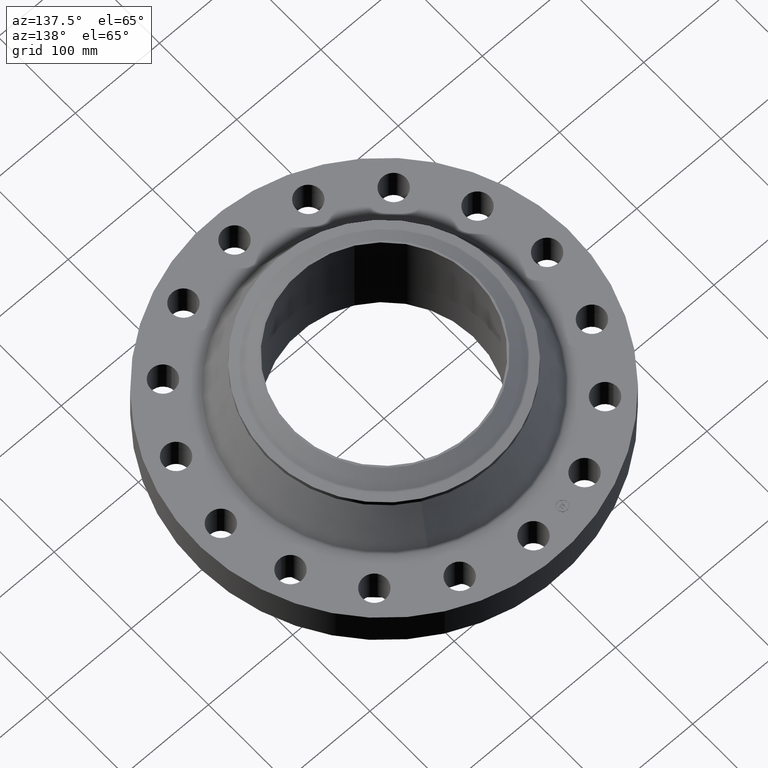
[diagram: clean part render]
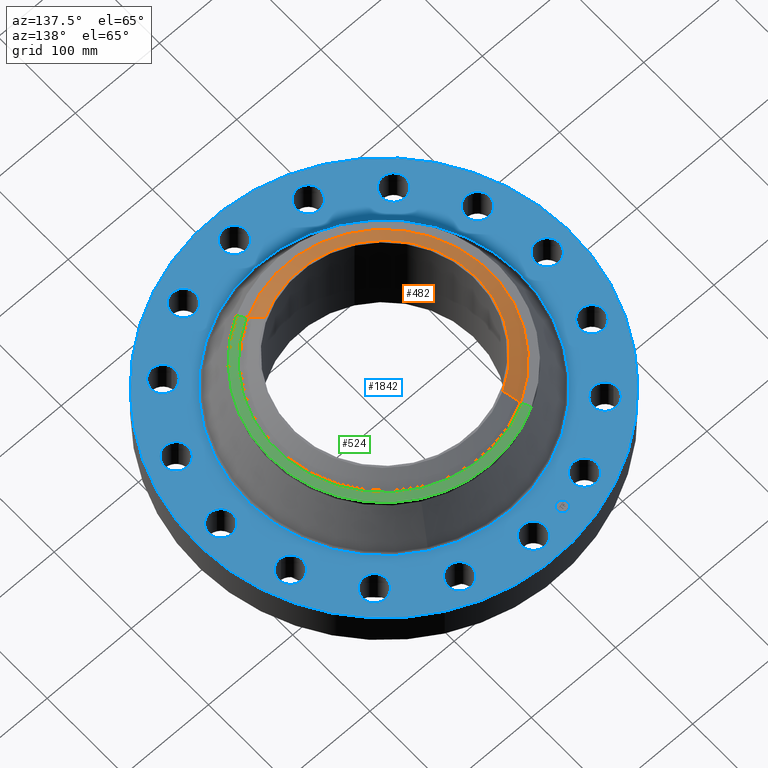
[diagram: same view with three faces highlighted in distinct colors, each labeled with its STEP entity id]
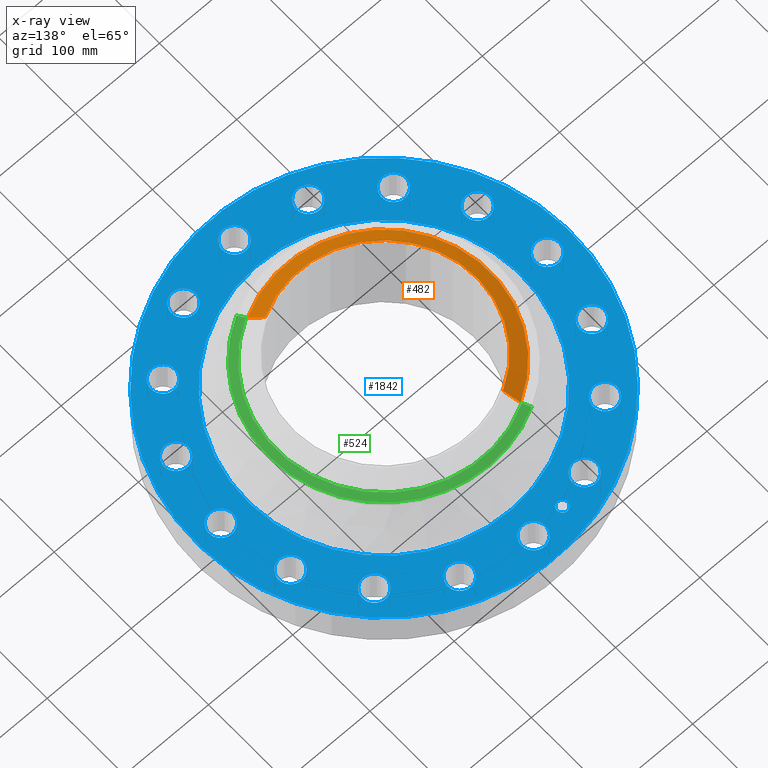
[diagram: x-ray of the same camera — body ghosted, the three highlighted faces saturated]
A machine part, auxiliary view with three faces highlighted in distinct colors.
The next image is the same camera in x-ray (body ghosted, the three faces saturated) — at least one of them is partly hidden behind the body in this view.
Their STEP definitions:

[orange] entity #482 — the highlighted conical surface has half-angle 52.5 deg.
#371=AXIS2_PLACEMENT_3D('Circle Axis2P3D',#369,#370,$) ;
#400=AXIS2_PLACEMENT_3D('Cone Axis2P3D',#397,#398,#399) ;
#473=AXIS2_PLACEMENT_3D('Circle Axis2P3D',#471,#472,$) ;
#364=CARTESIAN_POINT('Vertex',(2.07530858149,-3.79882687717,4.56000000002)) ;
#366=CARTESIAN_POINT('Vertex',(-2.07530858149,3.79882687717,4.56000000002)) ;
#369=CARTESIAN_POINT('Axis2P3D Location',(0.,0.,4.56000000002)) ;
#397=CARTESIAN_POINT('Axis2P3D Location',(0.,0.,4.56000000002)) ;
#402=CARTESIAN_POINT('Line Origine',(2.23024988404,-4.08244502908,4.31201437258)) ;
#406=CARTESIAN_POINT('Vertex',(2.38519118659,-4.36606318098,4.06402874515)) ;
#413=CARTESIAN_POINT('Vertex',(-2.38519118659,4.36606318098,4.06402874515)) ;
#416=CARTESIAN_POINT('Line Origine',(-2.23024988404,4.08244502908,4.31201437258)) ;
#471=CARTESIAN_POINT('Axis2P3D Location',(0.,0.,4.06402874515)) ;
#370=DIRECTION('Axis2P3D Direction',(0.,0.,-0.0393700787402)) ;
#398=DIRECTION('Axis2P3D Direction',(-0.,-0.,-0.0393700787402)) ;
#399=DIRECTION('Axis2P3D XDirection',(0.0188750212049,-0.0345504945626,0.)) ;
#403=DIRECTION('Vector Direction',(0.014974561121,-0.02741075027,-0.023966985394)) ;
#417=DIRECTION('Vector Direction',(-0.014974561121,0.02741075027,-0.023966985394)) ;
#472=DIRECTION('Axis2P3D Direction',(0.,0.,-0.0393700787402)) ;
#404=VECTOR('Line Direction',#403,0.0393700787402) ;
#418=VECTOR('Line Direction',#417,0.0393700787402) ;
#477=ORIENTED_EDGE('',*,*,#373,.F.) ;
#478=ORIENTED_EDGE('',*,*,#420,.T.) ;
#479=ORIENTED_EDGE('',*,*,#475,.T.) ;
#480=ORIENTED_EDGE('',*,*,#408,.F.) ;
#482=ADVANCED_FACE('PartBody',(#481),#401,.T.) ;
#372=CIRCLE('generated circle',#371,4.3287401575) ;
#474=CIRCLE('generated circle',#473,4.97510248104) ;
#401=CONICAL_SURFACE('Cone',#400,4.3287401575,0.916297857297) ;
#373=EDGE_CURVE('',#367,#365,#372,.F.) ;
#408=EDGE_CURVE('',#365,#407,#405,.T.) ;
#420=EDGE_CURVE('',#367,#414,#419,.T.) ;
#475=EDGE_CURVE('',#414,#407,#474,.F.) ;
#476=EDGE_LOOP('',(#477,#478,#479,#480)) ;
#481=FACE_OUTER_BOUND('',#476,.T.) ;
#405=LINE('Line',#402,#404) ;
#419=LINE('Line',#416,#418) ;
#365=VERTEX_POINT('',#364) ;
#367=VERTEX_POINT('',#366) ;
#407=VERTEX_POINT('',#406) ;
#414=VERTEX_POINT('',#413) ;

[blue] entity #1842 — the highlighted planar face has unit normal (0, 0, -1).
#65=AXIS2_PLACEMENT_3D('Circle Axis2P3D',#63,#64,$) ;
#90=AXIS2_PLACEMENT_3D('Circle Axis2P3D',#88,#89,$) ;
#130=AXIS2_PLACEMENT_3D('Circle Axis2P3D',#128,#129,$) ;
#154=AXIS2_PLACEMENT_3D('Circle Axis2P3D',#152,#153,$) ;
#171=AXIS2_PLACEMENT_3D('Circle Axis2P3D',#169,#170,$) ;
#206=AXIS2_PLACEMENT_3D('Circle Axis2P3D',#204,#205,$) ;
#891=AXIS2_PLACEMENT_3D('Circle Axis2P3D',#889,#890,$) ;
#903=AXIS2_PLACEMENT_3D('Circle Axis2P3D',#901,#902,$) ;
#934=AXIS2_PLACEMENT_3D('Circle Axis2P3D',#932,#933,$) ;
#946=AXIS2_PLACEMENT_3D('Circle Axis2P3D',#944,#945,$) ;
#977=AXIS2_PLACEMENT_3D('Circle Axis2P3D',#975,#976,$) ;
#989=AXIS2_PLACEMENT_3D('Circle Axis2P3D',#987,#988,$) ;
#1020=AXIS2_PLACEMENT_3D('Circle Axis2P3D',#1018,#1019,$) ;
#1032=AXIS2_PLACEMENT_3D('Circle Axis2P3D',#1030,#1031,$) ;
#1063=AXIS2_PLACEMENT_3D('Circle Axis2P3D',#1061,#1062,$) ;
#1075=AXIS2_PLACEMENT_3D('Circle Axis2P3D',#1073,#1074,$) ;
#1106=AXIS2_PLACEMENT_3D('Circle Axis2P3D',#1104,#1105,$) ;
#1118=AXIS2_PLACEMENT_3D('Circle Axis2P3D',#1116,#1117,$) ;
#1149=AXIS2_PLACEMENT_3D('Circle Axis2P3D',#1147,#1148,$) ;
#1161=AXIS2_PLACEMENT_3D('Circle Axis2P3D',#1159,#1160,$) ;
#1192=AXIS2_PLACEMENT_3D('Circle Axis2P3D',#1190,#1191,$) ;
#1204=AXIS2_PLACEMENT_3D('Circle Axis2P3D',#1202,#1203,$) ;
#1235=AXIS2_PLACEMENT_3D('Circle Axis2P3D',#1233,#1234,$) ;
#1247=AXIS2_PLACEMENT_3D('Circle Axis2P3D',#1245,#1246,$) ;
#1278=AXIS2_PLACEMENT_3D('Circle Axis2P3D',#1276,#1277,$) ;
#1290=AXIS2_PLACEMENT_3D('Circle Axis2P3D',#1288,#1289,$) ;
#1321=AXIS2_PLACEMENT_3D('Circle Axis2P3D',#1319,#1320,$) ;
#1333=AXIS2_PLACEMENT_3D('Circle Axis2P3D',#1331,#1332,$) ;
#1364=AXIS2_PLACEMENT_3D('Circle Axis2P3D',#1362,#1363,$) ;
#1376=AXIS2_PLACEMENT_3D('Circle Axis2P3D',#1374,#1375,$) ;
#1407=AXIS2_PLACEMENT_3D('Circle Axis2P3D',#1405,#1406,$) ;
#1419=AXIS2_PLACEMENT_3D('Circle Axis2P3D',#1417,#1418,$) ;
#1450=AXIS2_PLACEMENT_3D('Circle Axis2P3D',#1448,#1449,$) ;
#1462=AXIS2_PLACEMENT_3D('Circle Axis2P3D',#1460,#1461,$) ;
#1493=AXIS2_PLACEMENT_3D('Circle Axis2P3D',#1491,#1492,$) ;
#1505=AXIS2_PLACEMENT_3D('Circle Axis2P3D',#1503,#1504,$) ;
#1750=AXIS2_PLACEMENT_3D('Plane Axis2P3D',#1747,#1748,#1749) ;
#1826=AXIS2_PLACEMENT_3D('Circle Axis2P3D',#1824,#1825,$) ;
#1835=AXIS2_PLACEMENT_3D('Circle Axis2P3D',#1833,#1834,$) ;
#46=CARTESIAN_POINT('Vertex',(-0.491446234661,7.89347830165,1.81000000001)) ;
#60=CARTESIAN_POINT('Vertex',(0.491446234661,7.35652169841,1.81000000001)) ;
#63=CARTESIAN_POINT('Axis2P3D Location',(0.,7.62500000003,1.81000000001)) ;
#88=CARTESIAN_POINT('Axis2P3D Location',(0.,7.62500000003,1.81000000001)) ;
#125=CARTESIAN_POINT('Vertex',(-4.1949734628,-7.67884741657,1.81000000001)) ;
#128=CARTESIAN_POINT('Axis2P3D Location',(0.,0.,1.81000000001)) ;
#132=CARTESIAN_POINT('Vertex',(4.1949734628,7.67884741657,1.81000000001)) ;
#152=CARTESIAN_POINT('Axis2P3D Location',(0.,0.,1.81000000001)) ;
#169=CARTESIAN_POINT('Axis2P3D Location',(0.,0.,1.81000000001)) ;
#173=CARTESIAN_POINT('Vertex',(3.06126110191,5.60360086,1.81000000001)) ;
#175=CARTESIAN_POINT('Vertex',(-3.06126110191,-5.60360086,1.81000000001)) ;
#204=CARTESIAN_POINT('Axis2P3D Location',(0.,0.,1.81000000001)) ;
#879=CARTESIAN_POINT('Vertex',(-2.56666625224,-7.48069137512,1.81000000001)) ;
#886=CARTESIAN_POINT('Vertex',(-3.26925609135,-6.60847149573,1.81000000001)) ;
#889=CARTESIAN_POINT('Axis2P3D Location',(-2.9179611718,-7.04458143543,1.81000000001)) ;
#901=CARTESIAN_POINT('Axis2P3D Location',(-2.9179611718,-7.04458143543,1.81000000001)) ;
#922=CARTESIAN_POINT('Vertex',(5.23402706913,5.92903699936,1.81000000001)) ;
#929=CARTESIAN_POINT('Vertex',(5.54935134401,4.85434141378,1.81000000001)) ;
#932=CARTESIAN_POINT('Axis2P3D Location',(5.39168920657,5.39168920657,1.81000000001)) ;
#944=CARTESIAN_POINT('Axis2P3D Location',(5.39168920657,5.39168920657,1.81000000001)) ;
#965=CARTESIAN_POINT('Vertex',(-5.23402706913,-5.92903699936,1.81000000001)) ;
#972=CARTESIAN_POINT('Vertex',(-5.54935134401,-4.85434141378,1.81000000001)) ;
#975=CARTESIAN_POINT('Axis2P3D Location',(-5.39168920657,-5.39168920657,1.81000000001)) ;
#987=CARTESIAN_POINT('Axis2P3D Location',(-5.39168920657,-5.39168920657,1.81000000001)) ;
#1008=CARTESIAN_POINT('Vertex',(7.10455471131,3.47474048731,1.81000000001)) ;
#1015=CARTESIAN_POINT('Vertex',(6.98460815954,2.36118185628,1.81000000001)) ;
#1018=CARTESIAN_POINT('Axis2P3D Location',(7.04458143543,2.9179611718,1.81000000001)) ;
#1030=CARTESIAN_POINT('Axis2P3D Location',(7.04458143543,2.9179611718,1.81000000001)) ;
#1051=CARTESIAN_POINT('Vertex',(-7.10455471131,-3.47474048731,1.81000000001)) ;
#1058=CARTESIAN_POINT('Vertex',(-6.98460815954,-2.36118185628,1.81000000001)) ;
#1061=CARTESIAN_POINT('Axis2P3D Location',(-7.04458143543,-2.9179611718,1.81000000001)) ;
#1073=CARTESIAN_POINT('Axis2P3D Location',(-7.04458143543,-2.9179611718,1.81000000001)) ;
#1094=CARTESIAN_POINT('Vertex',(7.89347830165,0.491446234661,1.81000000001)) ;
#1101=CARTESIAN_POINT('Vertex',(7.35652169841,-0.491446234661,1.81000000001)) ;
#1104=CARTESIAN_POINT('Axis2P3D Location',(7.62500000003,-6.52068346028E-016,1.81000000001)) ;
#1116=CARTESIAN_POINT('Axis2P3D Location',(7.62500000003,-6.52068346028E-016,1.81000000001)) ;
#1137=CARTESIAN_POINT('Vertex',(-7.89347830165,-0.491446234661,1.81000000001)) ;
#1144=CARTESIAN_POINT('Vertex',(-7.35652169841,0.491446234661,1.81000000001)) ;
#1147=CARTESIAN_POINT('Axis2P3D Location',(-7.62500000003,-2.81724838326E-016,1.81000000001)) ;
#1159=CARTESIAN_POINT('Axis2P3D Location',(-7.62500000003,-2.81724838326E-016,1.81000000001)) ;
#1180=CARTESIAN_POINT('Vertex',(7.48069137512,-2.56666625224,1.81000000001)) ;
#1187=CARTESIAN_POINT('Vertex',(6.60847149573,-3.26925609135,1.81000000001)) ;
#1190=CARTESIAN_POINT('Axis2P3D Location',(7.04458143543,-2.9179611718,1.81000000001)) ;
#1202=CARTESIAN_POINT('Axis2P3D Location',(7.04458143543,-2.9179611718,1.81000000001)) ;
#1223=CARTESIAN_POINT('Vertex',(-7.48069137512,2.56666625224,1.81000000001)) ;
#1230=CARTESIAN_POINT('Vertex',(-6.60847149573,3.26925609135,1.81000000001)) ;
#1233=CARTESIAN_POINT('Axis2P3D Location',(-7.04458143543,2.9179611718,1.81000000001)) ;
#1245=CARTESIAN_POINT('Axis2P3D Location',(-7.04458143543,2.9179611718,1.81000000001)) ;
#1266=CARTESIAN_POINT('Vertex',(5.92903699936,-5.23402706913,1.81000000001)) ;
#1273=CARTESIAN_POINT('Vertex',(4.85434141378,-5.54935134401,1.81000000001)) ;
#1276=CARTESIAN_POINT('Axis2P3D Location',(5.39168920657,-5.39168920657,1.81000000001)) ;
#1288=CARTESIAN_POINT('Axis2P3D Location',(5.39168920657,-5.39168920657,1.81000000001)) ;
#1309=CARTESIAN_POINT('Vertex',(-5.92903699936,5.23402706913,1.81000000001)) ;
#1316=CARTESIAN_POINT('Vertex',(-4.85434141378,5.54935134401,1.81000000001)) ;
#1319=CARTESIAN_POINT('Axis2P3D Location',(-5.39168920657,5.39168920657,1.81000000001)) ;
#1331=CARTESIAN_POINT('Axis2P3D Location',(-5.39168920657,5.39168920657,1.81000000001)) ;
#1352=CARTESIAN_POINT('Vertex',(3.47474048731,-7.10455471131,1.81000000001)) ;
#1359=CARTESIAN_POINT('Vertex',(2.36118185628,-6.98460815954,1.81000000001)) ;
#1362=CARTESIAN_POINT('Axis2P3D Location',(2.9179611718,-7.04458143543,1.81000000001)) ;
#1374=CARTESIAN_POINT('Axis2P3D Location',(2.9179611718,-7.04458143543,1.81000000001)) ;
#1395=CARTESIAN_POINT('Vertex',(-3.47474048731,7.10455471131,1.81000000001)) ;
#1402=CARTESIAN_POINT('Vertex',(-2.36118185628,6.98460815954,1.81000000001)) ;
#1405=CARTESIAN_POINT('Axis2P3D Location',(-2.9179611718,7.04458143543,1.81000000001)) ;
#1417=CARTESIAN_POINT('Axis2P3D Location',(-2.9179611718,7.04458143543,1.81000000001)) ;
#1438=CARTESIAN_POINT('Vertex',(0.491446234661,-7.89347830165,1.81000000001)) ;
#1445=CARTESIAN_POINT('Vertex',(-0.491446234661,-7.35652169841,1.81000000001)) ;
#1448=CARTESIAN_POINT('Axis2P3D Location',(9.33793184354E-016,-7.62500000003,1.81000000001)) ;
#1460=CARTESIAN_POINT('Axis2P3D Location',(9.33793184354E-016,-7.62500000003,1.81000000001)) ;
#1481=CARTESIAN_POINT('Vertex',(2.56666625224,7.48069137512,1.81000000001)) ;
#1488=CARTESIAN_POINT('Vertex',(3.26925609135,6.60847149573,1.81000000001)) ;
#1491=CARTESIAN_POINT('Axis2P3D Location',(2.9179611718,7.04458143543,1.81000000001)) ;
#1503=CARTESIAN_POINT('Axis2P3D Location',(2.9179611718,7.04458143543,1.81000000001)) ;
#1747=CARTESIAN_POINT('Axis2P3D Location',(0.,8.75000000003,1.81000000001)) ;
#1824=CARTESIAN_POINT('Axis2P3D Location',(-1.48756370538,7.4784877631,1.81000000001)) ;
#1828=CARTESIAN_POINT('Vertex',(-1.73030806228,7.43020290841,1.81000000001)) ;
#1830=CARTESIAN_POINT('Vertex',(-1.24481934848,7.5267726178,1.81000000001)) ;
#1833=CARTESIAN_POINT('Axis2P3D Location',(-1.48756370538,7.4784877631,1.81000000001)) ;
#64=DIRECTION('Axis2P3D Direction',(0.,-0.,-0.0393700787402)) ;
#89=DIRECTION('Axis2P3D Direction',(0.,-0.,-0.0393700787402)) ;
#129=DIRECTION('Axis2P3D Direction',(0.,0.,-0.0393700787402)) ;
#153=DIRECTION('Axis2P3D Direction',(0.,0.,-0.0393700787402)) ;
#170=DIRECTION('Axis2P3D Direction',(0.,0.,-0.0393700787402)) ;
#205=DIRECTION('Axis2P3D Direction',(0.,0.,-0.0393700787402)) ;
#890=DIRECTION('Axis2P3D Direction',(0.,0.,-0.0393700787402)) ;
#902=DIRECTION('Axis2P3D Direction',(0.,0.,-0.0393700787402)) ;
#933=DIRECTION('Axis2P3D Direction',(0.,-0.,-0.0393700787402)) ;
#945=DIRECTION('Axis2P3D Direction',(0.,-0.,-0.0393700787402)) ;
#976=DIRECTION('Axis2P3D Direction',(0.,0.,-0.0393700787402)) ;
#988=DIRECTION('Axis2P3D Direction',(0.,0.,-0.0393700787402)) ;
#1019=DIRECTION('Axis2P3D Direction',(0.,-0.,-0.0393700787402)) ;
#1031=DIRECTION('Axis2P3D Direction',(0.,-0.,-0.0393700787402)) ;
#1062=DIRECTION('Axis2P3D Direction',(0.,0.,-0.0393700787402)) ;
#1074=DIRECTION('Axis2P3D Direction',(0.,0.,-0.0393700787402)) ;
#1105=DIRECTION('Axis2P3D Direction',(0.,-0.,-0.0393700787402)) ;
#1117=DIRECTION('Axis2P3D Direction',(0.,-0.,-0.0393700787402)) ;
#1148=DIRECTION('Axis2P3D Direction',(0.,0.,-0.0393700787402)) ;
#1160=DIRECTION('Axis2P3D Direction',(0.,0.,-0.0393700787402)) ;
#1191=DIRECTION('Axis2P3D Direction',(-0.,0.,-0.0393700787402)) ;
#1203=DIRECTION('Axis2P3D Direction',(-0.,0.,-0.0393700787402)) ;
#1234=DIRECTION('Axis2P3D Direction',(0.,0.,-0.0393700787402)) ;
#1246=DIRECTION('Axis2P3D Direction',(0.,0.,-0.0393700787402)) ;
#1277=DIRECTION('Axis2P3D Direction',(-0.,0.,-0.0393700787402)) ;
#1289=DIRECTION('Axis2P3D Direction',(-0.,0.,-0.0393700787402)) ;
#1320=DIRECTION('Axis2P3D Direction',(0.,0.,-0.0393700787402)) ;
#1332=DIRECTION('Axis2P3D Direction',(0.,0.,-0.0393700787402)) ;
#1363=DIRECTION('Axis2P3D Direction',(-0.,0.,-0.0393700787402)) ;
#1375=DIRECTION('Axis2P3D Direction',(-0.,0.,-0.0393700787402)) ;
#1406=DIRECTION('Axis2P3D Direction',(0.,0.,-0.0393700787402)) ;
#1418=DIRECTION('Axis2P3D Direction',(0.,0.,-0.0393700787402)) ;
#1449=DIRECTION('Axis2P3D Direction',(-0.,0.,-0.0393700787402)) ;
#1461=DIRECTION('Axis2P3D Direction',(-0.,0.,-0.0393700787402)) ;
#1492=DIRECTION('Axis2P3D Direction',(0.,-0.,-0.0393700787402)) ;
#1504=DIRECTION('Axis2P3D Direction',(0.,-0.,-0.0393700787402)) ;
#1748=DIRECTION('Axis2P3D Direction',(0.,0.,-0.0393700787402)) ;
#1749=DIRECTION('Axis2P3D XDirection',(0.0393700787402,0.,0.)) ;
#1825=DIRECTION('Axis2P3D Direction',(0.,0.,-0.0393700787402)) ;
#1834=DIRECTION('Axis2P3D Direction',(0.,0.,-0.0393700787402)) ;
#1753=ORIENTED_EDGE('',*,*,#156,.F.) ;
#1754=ORIENTED_EDGE('',*,*,#134,.F.) ;
#1757=ORIENTED_EDGE('',*,*,#67,.T.) ;
#1758=ORIENTED_EDGE('',*,*,#92,.T.) ;
#1761=ORIENTED_EDGE('',*,*,#208,.T.) ;
#1762=ORIENTED_EDGE('',*,*,#177,.T.) ;
#1765=ORIENTED_EDGE('',*,*,#1507,.T.) ;
#1766=ORIENTED_EDGE('',*,*,#1495,.T.) ;
#1769=ORIENTED_EDGE('',*,*,#948,.T.) ;
#1770=ORIENTED_EDGE('',*,*,#936,.T.) ;
#1773=ORIENTED_EDGE('',*,*,#1034,.T.) ;
#1774=ORIENTED_EDGE('',*,*,#1022,.T.) ;
#1777=ORIENTED_EDGE('',*,*,#1120,.T.) ;
#1778=ORIENTED_EDGE('',*,*,#1108,.T.) ;
#1781=ORIENTED_EDGE('',*,*,#1206,.T.) ;
#1782=ORIENTED_EDGE('',*,*,#1194,.T.) ;
#1785=ORIENTED_EDGE('',*,*,#1292,.T.) ;
#1786=ORIENTED_EDGE('',*,*,#1280,.T.) ;
#1789=ORIENTED_EDGE('',*,*,#1378,.T.) ;
#1790=ORIENTED_EDGE('',*,*,#1366,.T.) ;
#1793=ORIENTED_EDGE('',*,*,#1464,.T.) ;
#1794=ORIENTED_EDGE('',*,*,#1452,.T.) ;
#1797=ORIENTED_EDGE('',*,*,#905,.T.) ;
#1798=ORIENTED_EDGE('',*,*,#893,.T.) ;
#1801=ORIENTED_EDGE('',*,*,#991,.T.) ;
#1802=ORIENTED_EDGE('',*,*,#979,.T.) ;
#1805=ORIENTED_EDGE('',*,*,#1077,.T.) ;
#1806=ORIENTED_EDGE('',*,*,#1065,.T.) ;
#1809=ORIENTED_EDGE('',*,*,#1163,.T.) ;
#1810=ORIENTED_EDGE('',*,*,#1151,.T.) ;
#1813=ORIENTED_EDGE('',*,*,#1249,.T.) ;
#1814=ORIENTED_EDGE('',*,*,#1237,.T.) ;
#1817=ORIENTED_EDGE('',*,*,#1335,.T.) ;
#1818=ORIENTED_EDGE('',*,*,#1323,.T.) ;
#1821=ORIENTED_EDGE('',*,*,#1421,.T.) ;
#1822=ORIENTED_EDGE('',*,*,#1409,.T.) ;
#1839=ORIENTED_EDGE('',*,*,#1832,.T.) ;
#1840=ORIENTED_EDGE('',*,*,#1837,.T.) ;
#1759=FACE_BOUND('',#1756,.T.) ;
#1763=FACE_BOUND('',#1760,.T.) ;
#1767=FACE_BOUND('',#1764,.T.) ;
#1771=FACE_BOUND('',#1768,.T.) ;
#1775=FACE_BOUND('',#1772,.T.) ;
#1779=FACE_BOUND('',#1776,.T.) ;
#1783=FACE_BOUND('',#1780,.T.) ;
#1787=FACE_BOUND('',#1784,.T.) ;
#1791=FACE_BOUND('',#1788,.T.) ;
#1795=FACE_BOUND('',#1792,.T.) ;
#1799=FACE_BOUND('',#1796,.T.) ;
#1803=FACE_BOUND('',#1800,.T.) ;
#1807=FACE_BOUND('',#1804,.T.) ;
#1811=FACE_BOUND('',#1808,.T.) ;
#1815=FACE_BOUND('',#1812,.T.) ;
#1819=FACE_BOUND('',#1816,.T.) ;
#1823=FACE_BOUND('',#1820,.T.) ;
#1841=FACE_BOUND('',#1838,.T.) ;
#1842=ADVANCED_FACE('PartBody',(#1755,#1759,#1763,#1767,#1771,#1775,#1779,#1783,#1787,#1791,#1795,#1799,#1803,#1807,#1811,#1815,#1819,#1823,#1841),#1751,.F.) ;
#66=CIRCLE('generated circle',#65,0.560000000002) ;
#91=CIRCLE('generated circle',#90,0.560000000002) ;
#131=CIRCLE('generated circle',#130,8.75000000003) ;
#155=CIRCLE('generated circle',#154,8.75000000003) ;
#172=CIRCLE('generated circle',#171,6.38526915112) ;
#207=CIRCLE('generated circle',#206,6.38526915112) ;
#892=CIRCLE('generated circle',#891,0.560000000002) ;
#904=CIRCLE('generated circle',#903,0.560000000002) ;
#935=CIRCLE('generated circle',#934,0.560000000002) ;
#947=CIRCLE('generated circle',#946,0.560000000002) ;
#978=CIRCLE('generated circle',#977,0.560000000002) ;
#990=CIRCLE('generated circle',#989,0.560000000002) ;
#1021=CIRCLE('generated circle',#1020,0.560000000002) ;
#1033=CIRCLE('generated circle',#1032,0.560000000002) ;
#1064=CIRCLE('generated circle',#1063,0.560000000002) ;
#1076=CIRCLE('generated circle',#1075,0.560000000002) ;
#1107=CIRCLE('generated circle',#1106,0.560000000002) ;
#1119=CIRCLE('generated circle',#1118,0.560000000002) ;
#1150=CIRCLE('generated circle',#1149,0.560000000002) ;
#1162=CIRCLE('generated circle',#1161,0.560000000002) ;
#1193=CIRCLE('generated circle',#1192,0.560000000002) ;
#1205=CIRCLE('generated circle',#1204,0.560000000002) ;
#1236=CIRCLE('generated circle',#1235,0.560000000002) ;
#1248=CIRCLE('generated circle',#1247,0.560000000002) ;
#1279=CIRCLE('generated circle',#1278,0.560000000002) ;
#1291=CIRCLE('generated circle',#1290,0.560000000002) ;
#1322=CIRCLE('generated circle',#1321,0.560000000002) ;
#1334=CIRCLE('generated circle',#1333,0.560000000002) ;
#1365=CIRCLE('generated circle',#1364,0.560000000002) ;
#1377=CIRCLE('generated circle',#1376,0.560000000002) ;
#1408=CIRCLE('generated circle',#1407,0.560000000002) ;
#1420=CIRCLE('generated circle',#1419,0.560000000002) ;
#1451=CIRCLE('generated circle',#1450,0.560000000002) ;
#1463=CIRCLE('generated circle',#1462,0.560000000002) ;
#1494=CIRCLE('generated circle',#1493,0.560000000002) ;
#1506=CIRCLE('generated circle',#1505,0.560000000002) ;
#1827=CIRCLE('generated circle',#1826,0.247500000001) ;
#1836=CIRCLE('generated circle',#1835,0.247500000001) ;
#67=EDGE_CURVE('',#47,#61,#66,.T.) ;
#92=EDGE_CURVE('',#61,#47,#91,.T.) ;
#134=EDGE_CURVE('',#126,#133,#131,.T.) ;
#156=EDGE_CURVE('',#133,#126,#155,.T.) ;
#177=EDGE_CURVE('',#174,#176,#172,.T.) ;
#208=EDGE_CURVE('',#176,#174,#207,.T.) ;
#893=EDGE_CURVE('',#880,#887,#892,.T.) ;
#905=EDGE_CURVE('',#887,#880,#904,.T.) ;
#936=EDGE_CURVE('',#923,#930,#935,.T.) ;
#948=EDGE_CURVE('',#930,#923,#947,.T.) ;
#979=EDGE_CURVE('',#966,#973,#978,.T.) ;
#991=EDGE_CURVE('',#973,#966,#990,.T.) ;
#1022=EDGE_CURVE('',#1009,#1016,#1021,.T.) ;
#1034=EDGE_CURVE('',#1016,#1009,#1033,.T.) ;
#1065=EDGE_CURVE('',#1052,#1059,#1064,.T.) ;
#1077=EDGE_CURVE('',#1059,#1052,#1076,.T.) ;
#1108=EDGE_CURVE('',#1095,#1102,#1107,.T.) ;
#1120=EDGE_CURVE('',#1102,#1095,#1119,.T.) ;
#1151=EDGE_CURVE('',#1138,#1145,#1150,.T.) ;
#1163=EDGE_CURVE('',#1145,#1138,#1162,.T.) ;
#1194=EDGE_CURVE('',#1181,#1188,#1193,.T.) ;
#1206=EDGE_CURVE('',#1188,#1181,#1205,.T.) ;
#1237=EDGE_CURVE('',#1224,#1231,#1236,.T.) ;
#1249=EDGE_CURVE('',#1231,#1224,#1248,.T.) ;
#1280=EDGE_CURVE('',#1267,#1274,#1279,.T.) ;
#1292=EDGE_CURVE('',#1274,#1267,#1291,.T.) ;
#1323=EDGE_CURVE('',#1310,#1317,#1322,.T.) ;
#1335=EDGE_CURVE('',#1317,#1310,#1334,.T.) ;
#1366=EDGE_CURVE('',#1353,#1360,#1365,.T.) ;
#1378=EDGE_CURVE('',#1360,#1353,#1377,.T.) ;
#1409=EDGE_CURVE('',#1396,#1403,#1408,.T.) ;
#1421=EDGE_CURVE('',#1403,#1396,#1420,.T.) ;
#1452=EDGE_CURVE('',#1439,#1446,#1451,.T.) ;
#1464=EDGE_CURVE('',#1446,#1439,#1463,.T.) ;
#1495=EDGE_CURVE('',#1482,#1489,#1494,.T.) ;
#1507=EDGE_CURVE('',#1489,#1482,#1506,.T.) ;
#1832=EDGE_CURVE('',#1829,#1831,#1827,.T.) ;
#1837=EDGE_CURVE('',#1831,#1829,#1836,.T.) ;
#1752=EDGE_LOOP('',(#1753,#1754)) ;
#1756=EDGE_LOOP('',(#1757,#1758)) ;
#1760=EDGE_LOOP('',(#1761,#1762)) ;
#1764=EDGE_LOOP('',(#1765,#1766)) ;
#1768=EDGE_LOOP('',(#1769,#1770)) ;
#1772=EDGE_LOOP('',(#1773,#1774)) ;
#1776=EDGE_LOOP('',(#1777,#1778)) ;
#1780=EDGE_LOOP('',(#1781,#1782)) ;
#1784=EDGE_LOOP('',(#1785,#1786)) ;
#1788=EDGE_LOOP('',(#1789,#1790)) ;
#1792=EDGE_LOOP('',(#1793,#1794)) ;
#1796=EDGE_LOOP('',(#1797,#1798)) ;
#1800=EDGE_LOOP('',(#1801,#1802)) ;
#1804=EDGE_LOOP('',(#1805,#1806)) ;
#1808=EDGE_LOOP('',(#1809,#1810)) ;
#1812=EDGE_LOOP('',(#1813,#1814)) ;
#1816=EDGE_LOOP('',(#1817,#1818)) ;
#1820=EDGE_LOOP('',(#1821,#1822)) ;
#1838=EDGE_LOOP('',(#1839,#1840)) ;
#1755=FACE_OUTER_BOUND('',#1752,.T.) ;
#1751=PLANE('',#1750) ;
#47=VERTEX_POINT('',#46) ;
#61=VERTEX_POINT('',#60) ;
#126=VERTEX_POINT('',#125) ;
#133=VERTEX_POINT('',#132) ;
#174=VERTEX_POINT('',#173) ;
#176=VERTEX_POINT('',#175) ;
#880=VERTEX_POINT('',#879) ;
#887=VERTEX_POINT('',#886) ;
#923=VERTEX_POINT('',#922) ;
#930=VERTEX_POINT('',#929) ;
#966=VERTEX_POINT('',#965) ;
#973=VERTEX_POINT('',#972) ;
#1009=VERTEX_POINT('',#1008) ;
#1016=VERTEX_POINT('',#1015) ;
#1052=VERTEX_POINT('',#1051) ;
#1059=VERTEX_POINT('',#1058) ;
#1095=VERTEX_POINT('',#1094) ;
#1102=VERTEX_POINT('',#1101) ;
#1138=VERTEX_POINT('',#1137) ;
#1145=VERTEX_POINT('',#1144) ;
#1181=VERTEX_POINT('',#1180) ;
#1188=VERTEX_POINT('',#1187) ;
#1224=VERTEX_POINT('',#1223) ;
#1231=VERTEX_POINT('',#1230) ;
#1267=VERTEX_POINT('',#1266) ;
#1274=VERTEX_POINT('',#1273) ;
#1310=VERTEX_POINT('',#1309) ;
#1317=VERTEX_POINT('',#1316) ;
#1353=VERTEX_POINT('',#1352) ;
#1360=VERTEX_POINT('',#1359) ;
#1396=VERTEX_POINT('',#1395) ;
#1403=VERTEX_POINT('',#1402) ;
#1439=VERTEX_POINT('',#1438) ;
#1446=VERTEX_POINT('',#1445) ;
#1482=VERTEX_POINT('',#1481) ;
#1489=VERTEX_POINT('',#1488) ;
#1829=VERTEX_POINT('',#1828) ;
#1831=VERTEX_POINT('',#1830) ;

[green] entity #524 — the highlighted conical surface has half-angle 80 deg.
#285=AXIS2_PLACEMENT_3D('Circle Axis2P3D',#283,#284,$) ;
#312=AXIS2_PLACEMENT_3D('Circle Axis2P3D',#310,#311,$) ;
#326=AXIS2_PLACEMENT_3D('Cone Axis2P3D',#323,#324,#325) ;
#495=AXIS2_PLACEMENT_3D('Circle Axis2P3D',#493,#494,$) ;
#280=CARTESIAN_POINT('Vertex',(2.57691227001,4.71700627018,3.97996497498)) ;
#283=CARTESIAN_POINT('Axis2P3D Location',(0.,0.,3.97996497498)) ;
#287=CARTESIAN_POINT('Vertex',(2.57691227001,-4.71700627018,3.97996497498)) ;
#307=CARTESIAN_POINT('Vertex',(-2.57691227001,4.71700627018,3.97996497498)) ;
#310=CARTESIAN_POINT('Axis2P3D Location',(0.,0.,3.97996497498)) ;
#323=CARTESIAN_POINT('Axis2P3D Location',(0.,0.,4.04141601924)) ;
#328=CARTESIAN_POINT('Line Origine',(2.49337088607,-4.56408479262,4.01069049711)) ;
#332=CARTESIAN_POINT('Vertex',(2.40982950212,-4.41116331506,4.04141601924)) ;
#339=CARTESIAN_POINT('Vertex',(-2.40982950212,4.41116331506,4.04141601924)) ;
#342=CARTESIAN_POINT('Line Origine',(-2.49337088607,4.56408479262,4.01069049711)) ;
#493=CARTESIAN_POINT('Axis2P3D Location',(0.,0.,4.04141601924)) ;
#284=DIRECTION('Axis2P3D Direction',(0.,0.,-0.0393700787402)) ;
#311=DIRECTION('Axis2P3D Direction',(0.,0.,-0.0393700787402)) ;
#324=DIRECTION('Axis2P3D Direction',(-0.,-0.,-0.0393700787402)) ;
#325=DIRECTION('Axis2P3D XDirection',(-0.0188750212049,0.0345504945626,0.)) ;
#329=DIRECTION('Vector Direction',(0.0185882672208,-0.0340255949157,-0.00683654242783)) ;
#343=DIRECTION('Vector Direction',(-0.0185882672208,0.0340255949157,-0.00683654242783)) ;
#494=DIRECTION('Axis2P3D Direction',(0.,0.,0.0393700787402)) ;
#330=VECTOR('Line Direction',#329,0.0393700787402) ;
#344=VECTOR('Line Direction',#343,0.0393700787402) ;
#518=ORIENTED_EDGE('',*,*,#346,.F.) ;
#519=ORIENTED_EDGE('',*,*,#497,.F.) ;
#520=ORIENTED_EDGE('',*,*,#334,.T.) ;
#521=ORIENTED_EDGE('',*,*,#289,.T.) ;
#522=ORIENTED_EDGE('',*,*,#314,.F.) ;
#524=ADVANCED_FACE('PartBody',(#523),#327,.T.) ;
#286=CIRCLE('generated circle',#285,5.37500000002) ;
#313=CIRCLE('generated circle',#312,5.37500000002) ;
#496=CIRCLE('generated circle',#495,5.02649380994) ;
#327=CONICAL_SURFACE('Cone',#326,5.02649380994,1.3962634016) ;
#289=EDGE_CURVE('',#288,#281,#286,.F.) ;
#314=EDGE_CURVE('',#308,#281,#313,.T.) ;
#334=EDGE_CURVE('',#333,#288,#331,.T.) ;
#346=EDGE_CURVE('',#340,#308,#345,.T.) ;
#497=EDGE_CURVE('',#333,#340,#496,.T.) ;
#517=EDGE_LOOP('',(#518,#519,#520,#521,#522)) ;
#523=FACE_OUTER_BOUND('',#517,.T.) ;
#331=LINE('Line',#328,#330) ;
#345=LINE('Line',#342,#344) ;
#281=VERTEX_POINT('',#280) ;
#288=VERTEX_POINT('',#287) ;
#308=VERTEX_POINT('',#307) ;
#333=VERTEX_POINT('',#332) ;
#340=VERTEX_POINT('',#339) ;